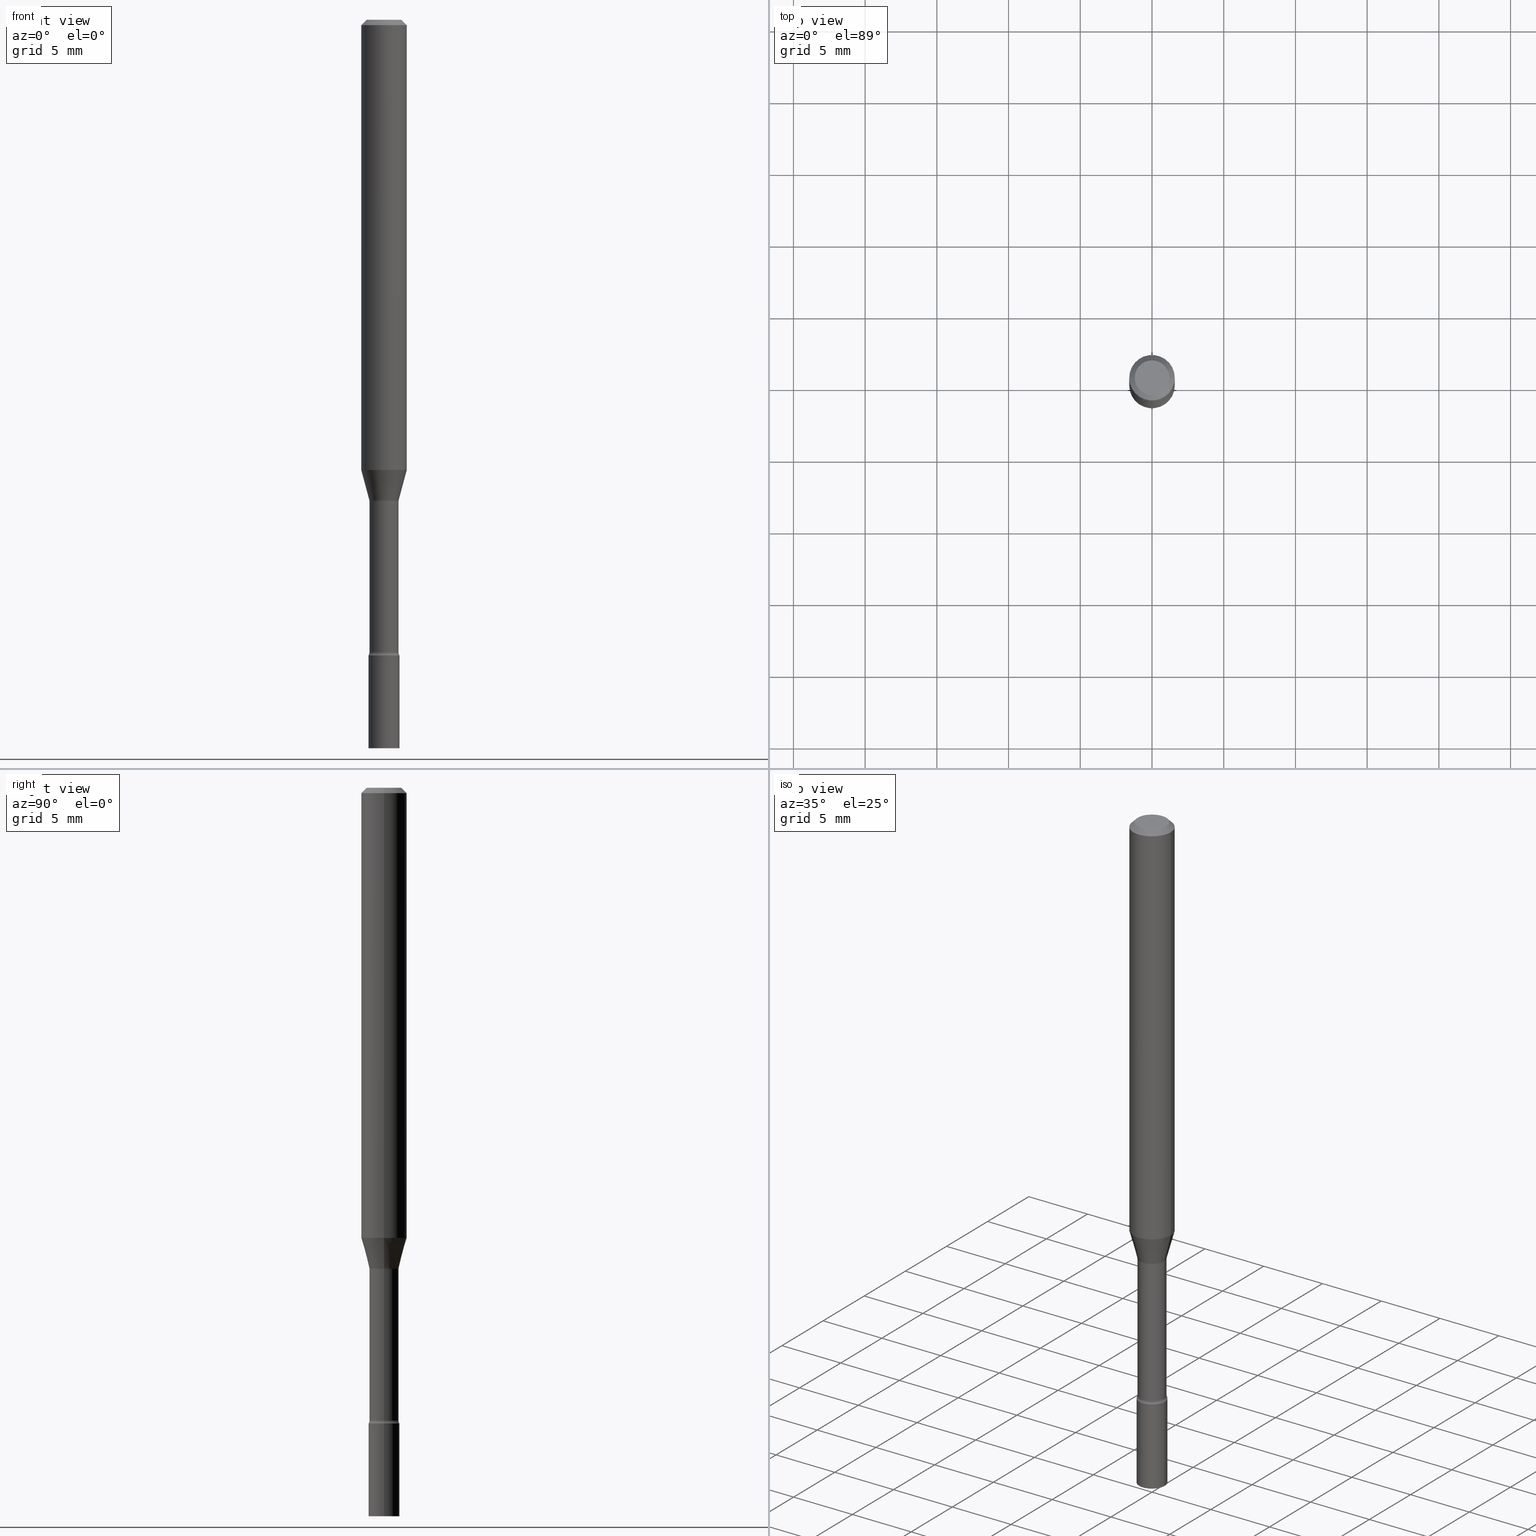
[diagram: canonical four-view strip — front | top / right | iso, engineering-drawing reading convention]
A machine part, canonical four-view strip (front | top / right | iso — engineering-drawing reading convention). The complete STEP part file that produces these views, byte-faithful:
ISO-10303-21;
HEADER;
FILE_DESCRIPTION (( 'STEP AP203' ),
    '1' );
FILE_NAME ('09877.STEP',
    '2024-03-09T02:40:56',
    ( '' ),
    ( '' ),
    'SwSTEP 2.0',
    'SolidWorks 2023',
    '' );
FILE_SCHEMA (( 'CONFIG_CONTROL_DESIGN' ));
ENDSEC;

DATA;
#1 = DIRECTION ( 'NONE',  ( 1.000000000000000000, -6.982962677686270655E-15, 0.000000000000000000 ) ) ;
#2 = ADVANCED_FACE ( 'NONE', ( #31 ), #85, .F. ) ;
#3 = CIRCLE ( 'NONE', #505, 0.04249999999999999611 ) ;
#4 = EDGE_CURVE ( 'NONE', #317, #429, #372, .T. ) ;
#5 = CARTESIAN_POINT ( 'NONE',  ( 0.000000000000000000, 0.000000000000000000, 0.000000000000000000 ) ) ;
#6 = LINE ( 'NONE', #447, #54 ) ;
#7 = CARTESIAN_POINT ( 'NONE',  ( -0.06250000000000000000, 3.840629472727443437E-16, -0.01500000000000003067 ) ) ;
#8 = PERSON_AND_ORGANIZATION ( #493, #487 ) ;
#9 = CC_DESIGN_DATE_AND_TIME_ASSIGNMENT ( #51, #297, ( #292 ) ) ;
#10 = DIRECTION ( 'NONE',  ( 1.000000000000000000, -6.982962677686267499E-15, 4.876176775795935793E-29 ) ) ;
#11 = AXIS2_PLACEMENT_3D ( 'NONE', #311, #421, #307 ) ;
#12 = APPROVAL_PERSON_ORGANIZATION ( #517, #144, #483 ) ;
#13 = LINE ( 'NONE', #7, #200 ) ;
#14 = LINE ( 'NONE', #27, #356 ) ;
#15 = ORIENTED_EDGE ( 'NONE', *, *, #231, .F. ) ;
#16 = LINE ( 'NONE', #276, #138 ) ;
#17 = ORIENTED_EDGE ( 'NONE', *, *, #96, .T. ) ;
#18 = ADVANCED_FACE ( 'NONE', ( #211 ), #288, .T. ) ;
#19 = AXIS2_PLACEMENT_3D ( 'NONE', #46, #262, #99 ) ;
#20 = ADVANCED_FACE ( 'NONE', ( #404 ), #41, .T. ) ;
#21 = AXIS2_PLACEMENT_3D ( 'NONE', #233, #235, #105 ) ;
#22 = LOCAL_TIME ( 21, 40, 56.00000000000000000, #215 ) ;
#23 = CARTESIAN_POINT ( 'NONE',  ( 3.223354096787303073E-29, -4.602095372859339575E-15, -1.318092501787273330 ) ) ;
#24 = VERTEX_POINT ( 'NONE', #42 ) ;
#25 = CARTESIAN_POINT ( 'NONE',  ( -0.06250000000000000000, -3.870830958754951536E-15, -1.235842254289322151 ) ) ;
#26 = ORIENTED_EDGE ( 'NONE', *, *, #96, .F. ) ;
#27 = CARTESIAN_POINT ( 'NONE',  ( 0.04046111260566397777, -4.884633812082352936E-15, -1.318092501787273330 ) ) ;
#28 = CC_DESIGN_DATE_AND_TIME_ASSIGNMENT ( #255, #258, ( #351 ) ) ;
#29 = APPROVAL_PERSON_ORGANIZATION ( #334, #187, #519 ) ;
#30 = FACE_OUTER_BOUND ( 'NONE', #466, .T. ) ;
#31 = FACE_OUTER_BOUND ( 'NONE', #224, .T. ) ;
#32 = CARTESIAN_POINT ( 'NONE',  ( 4.267343066793063832E-29, -6.092634936281288846E-15, -1.745000000000000107 ) ) ;
#33 = VERTEX_POINT ( 'NONE', #72 ) ;
#34 = CARTESIAN_POINT ( 'NONE',  ( 3.316907271900976096E-16, 0.04749999999999999362, -1.803023190589839165E-16 ) ) ;
#35 = ORIENTED_EDGE ( 'NONE', *, *, #361, .T. ) ;
#36 = ADVANCED_FACE ( 'NONE', ( #238 ), #39, .F. ) ;
#37 = EDGE_CURVE ( 'NONE', #355, #64, #127, .T. ) ;
#38 = PLANE ( 'NONE',  #86 ) ;
#39 = TOROIDAL_SURFACE ( 'NONE', #345, 0.05495000000000005436, 0.01499999999999999598 ) ;
#40 = LOCAL_TIME ( 21, 40, 56.00000000000000000, #380 ) ;
#41 = CYLINDRICAL_SURFACE ( 'NONE', #495, 0.06250000000000000000 ) ;
#42 = CARTESIAN_POINT ( 'NONE',  ( 0.06250000000000000000, -4.888073874380389458E-16, -0.01500000000000003067 ) ) ;
#43 = CALENDAR_DATE ( 2024, 8, 3 ) ;
#44 = DIRECTION ( 'NONE',  ( -2.445468806185136597E-29, 3.491481338843145583E-15, 1.000000000000000000 ) ) ;
#45 = DATE_AND_TIME ( #249, #40 ) ;
#46 = CARTESIAN_POINT ( 'NONE',  ( 3.223354096787303073E-29, -4.602095372859339575E-15, -1.318092501787273330 ) ) ;
#47 = AXIS2_PLACEMENT_3D ( 'NONE', #349, #150, #188 ) ;
#48 = DIRECTION ( 'NONE',  ( -2.445468806185136877E-29, 3.491481338843145188E-15, 1.000000000000000000 ) ) ;
#49 = DATE_AND_TIME ( #480, #22 ) ;
#50 = DIRECTION ( 'NONE',  ( -1.000000000000000000, 7.105427357600993970E-15, 0.000000000000000000 ) ) ;
#51 = DATE_AND_TIME ( #137, #357 ) ;
#52 = DIRECTION ( 'NONE',  ( -2.445468806185136597E-29, 3.491481338843145583E-15, 1.000000000000000000 ) ) ;
#53 = AXIS2_PLACEMENT_3D ( 'NONE', #218, #337, #250 ) ;
#54 = VECTOR ( 'NONE', #186, 39.37007874015747433 ) ;
#55 = AXIS2_PLACEMENT_3D ( 'NONE', #23, #428, #194 ) ;
#56 = FACE_OUTER_BOUND ( 'NONE', #79, .T. ) ;
#57 = ORIENTED_EDGE ( 'NONE', *, *, #60, .T. ) ;
#58 = PRODUCT ( '09877', '09877', '', ( #330 ) ) ;
#59 = CYLINDRICAL_SURFACE ( 'NONE', #193, 0.04249999999999999611 ) ;
#60 = EDGE_CURVE ( 'NONE', #33, #363, #183, .T. ) ;
#61 = ORIENTED_EDGE ( 'NONE', *, *, #446, .T. ) ;
#62 = UNCERTAINTY_MEASURE_WITH_UNIT (LENGTH_MEASURE( 1.000000000000000082E-05 ), #358, 'distance_accuracy_value', 'NONE');
#63 = LINE ( 'NONE', #457, #291 ) ;
#64 = VERTEX_POINT ( 'NONE', #412 ) ;
#65 = AXIS2_PLACEMENT_3D ( 'NONE', #295, #492, #70 ) ;
#66 = CIRCLE ( 'NONE', #322, 0.01500000000000002720 ) ;
#67 = DIRECTION ( 'NONE',  ( -6.982962677686266711E-15, -1.000000000000000000, 3.491481338843145583E-15 ) ) ;
#68 = VERTEX_POINT ( 'NONE', #296 ) ;
#69 = CC_DESIGN_PERSON_AND_ORGANIZATION_ASSIGNMENT ( #130, #367, ( #120 ) ) ;
#70 = DIRECTION ( 'NONE',  ( 1.000000000000000000, -6.982962677686265922E-15, 4.876176775795935793E-29 ) ) ;
#71 = ORIENTED_EDGE ( 'NONE', *, *, #368, .T. ) ;
#72 = CARTESIAN_POINT ( 'NONE',  ( -0.03995000000000005491, -5.785108039938417774E-15, -1.736633549139569688 ) ) ;
#73 = AXIS2_PLACEMENT_3D ( 'NONE', #453, #67, #107 ) ;
#74 = ADVANCED_BREP_SHAPE_REPRESENTATION ( '09877', ( #304, #135, #283 ), #306 ) ;
#75 = CARTESIAN_POINT ( 'NONE',  ( 4.267343066793063832E-29, -6.092634936281288846E-15, -1.745000000000000107 ) ) ;
#76 = ORIENTED_EDGE ( 'NONE', *, *, #498, .F. ) ;
#77 = FACE_OUTER_BOUND ( 'NONE', #393, .T. ) ;
#78 = EDGE_CURVE ( 'NONE', #64, #24, #222, .T. ) ;
#79 = EDGE_LOOP ( 'NONE', ( #474, #35, #71, #277 ) ) ;
#80 = EDGE_CURVE ( 'NONE', #456, #363, #221, .T. ) ;
#81 = EDGE_CURVE ( 'NONE', #518, #494, #504, .T. ) ;
#82 = DIRECTION ( 'NONE',  ( -2.438088387897960049E-29, 3.491481338843145188E-15, 1.000000000000000000 ) ) ;
#83 = DIRECTION ( 'NONE',  ( 1.000000000000000000, -6.982962677686268288E-15, 4.883557194083112901E-29 ) ) ;
#84 = DIRECTION ( 'NONE',  ( -2.445468806185136597E-29, 3.491481338843145583E-15, 1.000000000000000000 ) ) ;
#85 = TOROIDAL_SURFACE ( 'NONE', #382, 0.05495000000000005436, 0.01499999999999999598 ) ;
#86 = AXIS2_PLACEMENT_3D ( 'NONE', #34, #205, #320 ) ;
#87 = CARTESIAN_POINT ( 'NONE',  ( 3.232848105305976376E-29, -4.615650300851030950E-15, -1.321974787463811252 ) ) ;
#88 = CYLINDRICAL_SURFACE ( 'NONE', #227, 0.03995000000000002716 ) ;
#89 = COORDINATED_UNIVERSAL_TIME_OFFSET ( 5, 0, .BEHIND. ) ;
#90 = DIRECTION ( 'NONE',  ( 1.000000000000000000, -6.982962677686268288E-15, 4.883557194083112901E-29 ) ) ;
#91 = PERSON_AND_ORGANIZATION ( #493, #487 ) ;
#92 = LINE ( 'NONE', #257, #448 ) ;
#93 = LOCAL_TIME ( 21, 40, 56.00000000000000000, #94 ) ;
#94 = COORDINATED_UNIVERSAL_TIME_OFFSET ( 5, 0, .BEHIND. ) ;
#95 = CARTESIAN_POINT ( 'NONE',  ( 0.04249999999999999611, -7.279738591487957027E-15, -2.000000000000000000 ) ) ;
#96 = EDGE_CURVE ( 'NONE', #501, #314, #13, .T. ) ;
#97 = EDGE_CURVE ( 'NONE', #369, #199, #163, .T. ) ;
#98 = APPLICATION_PROTOCOL_DEFINITION ( 'international standard', 'config_control_design', 1994, #406 ) ;
#99 = DIRECTION ( 'NONE',  ( 1.000000000000000000, -6.982962677686276966E-15, 0.000000000000000000 ) ) ;
#100 = FACE_OUTER_BOUND ( 'NONE', #437, .T. ) ;
#101 = AXIS2_PLACEMENT_3D ( 'NONE', #418, #52, #375 ) ;
#102 = AXIS2_PLACEMENT_3D ( 'NONE', #399, #237, #161 ) ;
#103 = EDGE_CURVE ( 'NONE', #518, #355, #6, .T. ) ;
#104 = EDGE_CURVE ( 'NONE', #199, #321, #92, .T. ) ;
#105 = DIRECTION ( 'NONE',  ( 1.000000000000000000, -6.982962677686266711E-15, 0.000000000000000000 ) ) ;
#106 = EDGE_LOOP ( 'NONE', ( #310, #273, #458, #242 ) ) ;
#107 = DIRECTION ( 'NONE',  ( 1.000000000000000000, -6.982962677686255667E-15, 0.000000000000000000 ) ) ;
#108 = ORIENTED_EDGE ( 'NONE', *, *, #104, .F. ) ;
#109 = DIRECTION ( 'NONE',  ( -2.445468806185136597E-29, 3.491481338843145583E-15, 1.000000000000000000 ) ) ;
#110 = ORIENTED_EDGE ( 'NONE', *, *, #514, .F. ) ;
#111 = CC_DESIGN_PERSON_AND_ORGANIZATION_ASSIGNMENT ( #91, #374, ( #292 ) ) ;
#112 = LOCAL_TIME ( 21, 40, 56.00000000000000000, #89 ) ;
#113 = DIRECTION ( 'NONE',  ( -2.445468806185136597E-29, 3.491481338843145583E-15, 1.000000000000000000 ) ) ;
#114 = ORIENTED_EDGE ( 'NONE', *, *, #344, .F. ) ;
#115 = DIRECTION ( 'NONE',  ( 1.000000000000000000, -6.982962677686266711E-15, 0.000000000000000000 ) ) ;
#116 = ORIENTED_EDGE ( 'NONE', *, *, #289, .F. ) ;
#117 = CARTESIAN_POINT ( 'NONE',  ( 4.246883172195400307E-29, -6.063423629229748682E-15, -1.736633549139569688 ) ) ;
#118 = EDGE_LOOP ( 'NONE', ( #398, #126, #151, #159 ) ) ;
#119 = AXIS2_PLACEMENT_3D ( 'NONE', #444, #341, #178 ) ;
#120 = PRODUCT_DEFINITION_FORMATION_WITH_SPECIFIED_SOURCE ( 'ANY', '', #58, .NOT_KNOWN. ) ;
#121 = DIRECTION ( 'NONE',  ( 1.000000000000000000, -6.982962677686276177E-15, 0.000000000000000000 ) ) ;
#122 = ORIENTED_EDGE ( 'NONE', *, *, #136, .T. ) ;
#123 = CARTESIAN_POINT ( 'NONE',  ( 0.04249999999999998918, -6.389410850082956286E-15, -1.745000000000000107 ) ) ;
#124 = DIRECTION ( 'NONE',  ( 1.000000000000000000, -6.982962677686276966E-15, 0.000000000000000000 ) ) ;
#125 = CARTESIAN_POINT ( 'NONE',  ( -0.04046111260566397777, -4.092716417593515738E-15, -1.318092501787273330 ) ) ;
#126 = ORIENTED_EDGE ( 'NONE', *, *, #179, .T. ) ;
#127 = CIRCLE ( 'NONE', #425, 0.06250000000000000000 ) ;
#128 = AXIS2_PLACEMENT_3D ( 'NONE', #359, #470, #115 ) ;
#129 = DIRECTION ( 'NONE',  ( -1.000000000000000000, 6.982962677686265922E-15, -4.876176775795935793E-29 ) ) ;
#130 = PERSON_AND_ORGANIZATION ( #493, #487 ) ;
#131 = DIRECTION ( 'NONE',  ( -0.7071067811865475727, 2.468850131082257455E-15, -0.7071067811865474617 ) ) ;
#132 = CALENDAR_DATE ( 2024, 8, 3 ) ;
#133 = DIMENSIONAL_EXPONENTS ( 1.000000000000000000, 0.000000000000000000, 0.000000000000000000, 0.000000000000000000, 0.000000000000000000, 0.000000000000000000, 0.000000000000000000 ) ;
#134 = DIRECTION ( 'NONE',  ( 1.000000000000000000, -6.982962677686270655E-15, 0.000000000000000000 ) ) ;
#135 = MANIFOLD_SOLID_BREP ( 'Body-Move/Copy2[2]', #471 ) ;
#136 = EDGE_CURVE ( 'NONE', #352, #321, #207, .T. ) ;
#137 = CALENDAR_DATE ( 2024, 8, 3 ) ;
#138 = VECTOR ( 'NONE', #309, 39.37007874015748143 ) ;
#139 = CC_DESIGN_PERSON_AND_ORGANIZATION_ASSIGNMENT ( #417, #336, ( #351 ) ) ;
#140 = FACE_OUTER_BOUND ( 'NONE', #228, .T. ) ;
#141 = VECTOR ( 'NONE', #436, 39.37007874015748143 ) ;
#142 = CARTESIAN_POINT ( 'NONE',  ( -0.06250000000000000000, 4.440892098500626162E-16, -3.074334431409316114E-30 ) ) ;
#143 = DIRECTION ( 'NONE',  ( 1.000000000000000000, -6.982962677686269866E-15, 4.883557194083114022E-29 ) ) ;
#144 = APPROVAL ( #182, 'UNSPECIFIED' ) ;
#145 = CARTESIAN_POINT ( 'NONE',  ( 3.232848105305976376E-29, -4.615650300851030950E-15, -1.321974787463811252 ) ) ;
#146 = VECTOR ( 'NONE', #48, 39.37007874015748143 ) ;
#147 = VECTOR ( 'NONE', #271, 39.37007874015748143 ) ;
#148 = DIRECTION ( 'NONE',  ( -2.445468806185136597E-29, 3.491481338843145583E-15, 1.000000000000000000 ) ) ;
#149 = ORIENTED_EDGE ( 'NONE', *, *, #467, .T. ) ;
#150 = DIRECTION ( 'NONE',  ( -6.982962677686266711E-15, -1.000000000000000000, 3.491481338843145583E-15 ) ) ;
#151 = ORIENTED_EDGE ( 'NONE', *, *, #507, .F. ) ;
#152 = DIRECTION ( 'NONE',  ( 1.000000000000000000, -6.982962677686269866E-15, 4.883557194083114022E-29 ) ) ;
#153 = ORIENTED_EDGE ( 'NONE', *, *, #81, .T. ) ;
#154 = AXIS2_PLACEMENT_3D ( 'NONE', #387, #225, #198 ) ;
#155 = CC_DESIGN_APPROVAL ( #144, ( #292 ) ) ;
#156 = LENGTH_MEASURE_WITH_UNIT ( LENGTH_MEASURE( 0.02539999999999999897 ), #212 );
#157 = EDGE_LOOP ( 'NONE', ( #61, #422 ) ) ;
#158 = DIRECTION ( 'NONE',  ( 1.000000000000000000, -6.982962677686276177E-15, 0.000000000000000000 ) ) ;
#159 = ORIENTED_EDGE ( 'NONE', *, *, #78, .F. ) ;
#160 = CC_DESIGN_PERSON_AND_ORGANIZATION_ASSIGNMENT ( #8, #376, ( #120 ) ) ;
#161 = DIRECTION ( 'NONE',  ( -1.000000000000000000, 6.982962677686266711E-15, 0.000000000000000000 ) ) ;
#162 = ORIENTED_EDGE ( 'NONE', *, *, #104, .T. ) ;
#163 = CIRCLE ( 'NONE', #101, 0.04249999999999999611 ) ;
#164 = CONICAL_SURFACE ( 'NONE', #175, 0.06250000000000000000, 0.7853981633974483900 ) ;
#165 = CC_DESIGN_SECURITY_CLASSIFICATION ( #292, ( #120 ) ) ;
#166 = DIRECTION ( 'NONE',  ( -1.000000000000000000, 6.982962677686266711E-15, 0.000000000000000000 ) ) ;
#167 = ORIENTED_EDGE ( 'NONE', *, *, #269, .F. ) ;
#168 = DIRECTION ( 'NONE',  ( 1.000000000000000000, -6.982962677686276966E-15, 0.000000000000000000 ) ) ;
#169 = ADVANCED_FACE ( 'NONE', ( #489 ), #381, .T. ) ;
#170 = ORIENTED_EDGE ( 'NONE', *, *, #78, .T. ) ;
#171 = SHAPE_DEFINITION_REPRESENTATION ( #490, #74 ) ;
#172 = DIRECTION ( 'NONE',  ( -2.445468806185136597E-29, 3.491481338843145583E-15, 1.000000000000000000 ) ) ;
#173 = AXIS2_PLACEMENT_3D ( 'NONE', #253, #452, #384 ) ;
#174 = PERSON_AND_ORGANIZATION ( #493, #487 ) ;
#175 = AXIS2_PLACEMENT_3D ( 'NONE', #465, #210, #166 ) ;
#176 = PLANE ( 'NONE',  #65 ) ;
#177 = COORDINATED_UNIVERSAL_TIME_OFFSET ( 5, 0, .BEHIND. ) ;
#178 = DIRECTION ( 'NONE',  ( 1.000000000000000000, -6.982962677686276177E-15, 0.000000000000000000 ) ) ;
#179 = EDGE_CURVE ( 'NONE', #355, #314, #220, .T. ) ;
#180 = ADVANCED_FACE ( 'NONE', ( #140 ), #342, .T. ) ;
#181 = DIRECTION ( 'NONE',  ( -2.445468806185136597E-29, 3.491481338843145583E-15, 1.000000000000000000 ) ) ;
#182 = APPROVAL_STATUS ( 'not_yet_approved' ) ;
#183 = CIRCLE ( 'NONE', #440, 0.01499999999999999424 ) ;
#184 = CARTESIAN_POINT ( 'NONE',  ( 0.000000000000000000, 0.000000000000000000, 0.000000000000000000 ) ) ;
#185 = CIRCLE ( 'NONE', #479, 0.03994999999999999246 ) ;
#186 = DIRECTION ( 'NONE',  ( -0.2588190451025214611, 5.211531920934551042E-15, 0.9659258262890682012 ) ) ;
#187 = APPROVAL ( #370, 'UNSPECIFIED' ) ;
#188 = DIRECTION ( 'NONE',  ( 1.000000000000000000, -6.982962677686270655E-15, 0.000000000000000000 ) ) ;
#189 = ORIENTED_EDGE ( 'NONE', *, *, #325, .F. ) ;
#190 = DIRECTION ( 'NONE',  ( -2.445468806185136597E-29, 3.491481338843145583E-15, 1.000000000000000000 ) ) ;
#191 = CIRCLE ( 'NONE', #512, 0.06250000000000000000 ) ;
#192 = EDGE_LOOP ( 'NONE', ( #424, #402, #170, #206 ) ) ;
#193 = AXIS2_PLACEMENT_3D ( 'NONE', #265, #148, #394 ) ;
#194 = DIRECTION ( 'NONE',  ( 1.000000000000000000, -6.982962677686276966E-15, 0.000000000000000000 ) ) ;
#195 = ORIENTED_EDGE ( 'NONE', *, *, #278, .T. ) ;
#196 = CARTESIAN_POINT ( 'NONE',  ( -0.05494999999999999885, -4.225207067550855512E-15, -1.321974787463811252 ) ) ;
#197 = EDGE_LOOP ( 'NONE', ( #202, #153, #285, #472 ) ) ;
#198 = DIRECTION ( 'NONE',  ( 1.000000000000000000, -6.982962677686265922E-15, 0.000000000000000000 ) ) ;
#199 = VERTEX_POINT ( 'NONE', #95 ) ;
#200 = VECTOR ( 'NONE', #131, 39.37007874015748143 ) ;
#201 = CARTESIAN_POINT ( 'NONE',  ( 0.04046111260566397777, -4.884633812082352936E-15, -1.318092501787273330 ) ) ;
#202 = ORIENTED_EDGE ( 'NONE', *, *, #103, .F. ) ;
#203 = DIRECTION ( 'NONE',  ( 1.000000000000000000, -6.982962677686265922E-15, 4.876176775795935232E-29 ) ) ;
#204 = ORIENTED_EDGE ( 'NONE', *, *, #252, .T. ) ;
#205 = DIRECTION ( 'NONE',  ( 2.438088387897960049E-29, -3.491481338843145188E-15, -1.000000000000000000 ) ) ;
#206 = ORIENTED_EDGE ( 'NONE', *, *, #267, .F. ) ;
#207 = CIRCLE ( 'NONE', #119, 0.04249999999999999611 ) ;
#208 = AXIS2_PLACEMENT_3D ( 'NONE', #407, #365, #475 ) ;
#209 = APPROVAL ( #214, 'UNSPECIFIED' ) ;
#210 = DIRECTION ( 'NONE',  ( 2.445468806185136597E-29, -3.491481338843145583E-15, -1.000000000000000000 ) ) ;
#211 = FACE_OUTER_BOUND ( 'NONE', #331, .T. ) ;
#212 =( LENGTH_UNIT ( ) NAMED_UNIT ( * ) SI_UNIT ( $, .METRE. ) );
#213 = ORIENTED_EDGE ( 'NONE', *, *, #294, .T. ) ;
#214 = APPROVAL_STATUS ( 'not_yet_approved' ) ;
#215 = COORDINATED_UNIVERSAL_TIME_OFFSET ( 5, 0, .BEHIND. ) ;
#216 = CC_DESIGN_APPROVAL ( #209, ( #351 ) ) ;
#217 = CARTESIAN_POINT ( 'NONE',  ( 0.06250000000000000000, -4.364351673553916694E-16, 3.047610484872459871E-30 ) ) ;
#218 = CARTESIAN_POINT ( 'NONE',  ( 0.000000000000000000, 0.000000000000000000, 0.000000000000000000 ) ) ;
#219 = DIRECTION ( 'NONE',  ( 0.000000000000000000, 0.000000000000000000, 1.000000000000000000 ) ) ;
#220 = LINE ( 'NONE', #142, #332 ) ;
#221 = CIRCLE ( 'NONE', #173, 0.04249999999999999611 ) ;
#222 = LINE ( 'NONE', #217, #146 ) ;
#223 = CIRCLE ( 'NONE', #239, 0.04249999999999999611 ) ;
#224 = EDGE_LOOP ( 'NONE', ( #236, #57, #149, #360 ) ) ;
#225 = DIRECTION ( 'NONE',  ( -2.445468806185136597E-29, 3.491481338843145583E-15, 1.000000000000000000 ) ) ;
#226 = EDGE_LOOP ( 'NONE', ( #195, #312, #497, #348 ) ) ;
#227 = AXIS2_PLACEMENT_3D ( 'NONE', #184, #44, #302 ) ;
#228 = EDGE_LOOP ( 'NONE', ( #329, #506, #319, #108 ) ) ;
#229 = ADVANCED_FACE ( 'NONE', ( #442 ), #88, .T. ) ;
#230 = AXIS2_PLACEMENT_3D ( 'NONE', #353, #423, #143 ) ;
#231 = EDGE_CURVE ( 'NONE', #64, #355, #191, .T. ) ;
#232 = ADVANCED_FACE ( 'NONE', ( #371 ), #176, .F. ) ;
#233 = CARTESIAN_POINT ( 'NONE',  ( 3.668203209277712094E-31, -5.237222008264728876E-17, -0.01500000000000003067 ) ) ;
#234 = ORIENTED_EDGE ( 'NONE', *, *, #80, .F. ) ;
#235 = DIRECTION ( 'NONE',  ( -2.445468806185136597E-29, 3.491481338843145583E-15, 1.000000000000000000 ) ) ;
#236 = ORIENTED_EDGE ( 'NONE', *, *, #413, .F. ) ;
#237 = DIRECTION ( 'NONE',  ( 2.445468806185136597E-29, -3.491481338843145583E-15, -1.000000000000000000 ) ) ;
#238 = FACE_OUTER_BOUND ( 'NONE', #106, .T. ) ;
#239 = AXIS2_PLACEMENT_3D ( 'NONE', #247, #509, #121 ) ;
#240 = CARTESIAN_POINT ( 'NONE',  ( -0.03995000000000002716, 2.838618229361602172E-16, -1.965114568556836001E-30 ) ) ;
#241 = PLANE ( 'NONE',  #454 ) ;
#242 = ORIENTED_EDGE ( 'NONE', *, *, #80, .T. ) ;
#243 = DIRECTION ( 'NONE',  ( -2.445468806185136597E-29, 3.491481338843145583E-15, 1.000000000000000000 ) ) ;
#244 = CARTESIAN_POINT ( 'NONE',  ( 2.967759138017151657E-16, 0.04249999999999301559, -2.000000000000000444 ) ) ;
#245 = ADVANCED_FACE ( 'NONE', ( #264 ), #272, .T. ) ;
#246 = TOROIDAL_SURFACE ( 'NONE', #230, 0.05494999999999999885, 0.01500000000000003240 ) ;
#247 = CARTESIAN_POINT ( 'NONE',  ( 4.267343066793063832E-29, -6.092634936281288846E-15, -1.745000000000000107 ) ) ;
#248 = ORIENTED_EDGE ( 'NONE', *, *, #136, .F. ) ;
#249 = CALENDAR_DATE ( 2024, 8, 3 ) ;
#250 = DIRECTION ( 'NONE',  ( 1.000000000000000000, -6.982962677686266711E-15, 4.876176775795935793E-29 ) ) ;
#251 = PERSON_AND_ORGANIZATION_ROLE ( 'design_owner' ) ;
#252 = EDGE_CURVE ( 'NONE', #68, #317, #16, .T. ) ;
#253 = CARTESIAN_POINT ( 'NONE',  ( 4.267343066793063832E-29, -6.092634936281288846E-15, -1.745000000000000107 ) ) ;
#254 = AXIS2_PLACEMENT_3D ( 'NONE', #244, #478, #129 ) ;
#255 = DATE_AND_TIME ( #43, #112 ) ;
#256 = TOROIDAL_SURFACE ( 'NONE', #388, 0.05494999999999999885, 0.01500000000000003240 ) ;
#257 = CARTESIAN_POINT ( 'NONE',  ( 0.04249999999999999611, -2.967759138016663549E-16, 2.072375129713272502E-30 ) ) ;
#258 = DATE_TIME_ROLE ( 'creation_date' ) ;
#259 = CARTESIAN_POINT ( 'NONE',  ( 3.022213682230056525E-29, -4.314920168605014152E-15, -1.235842254289322151 ) ) ;
#260 = ADVANCED_FACE ( 'NONE', ( #420 ), #59, .T. ) ;
#261 = PERSON_AND_ORGANIZATION ( #493, #487 ) ;
#262 = DIRECTION ( 'NONE',  ( -2.445468806185136597E-29, 3.491481338843145583E-15, 1.000000000000000000 ) ) ;
#263 = AXIS2_PLACEMENT_3D ( 'NONE', #87, #172, #124 ) ;
#264 = FACE_OUTER_BOUND ( 'NONE', #197, .T. ) ;
#265 = CARTESIAN_POINT ( 'NONE',  ( 0.000000000000000000, 0.000000000000000000, 0.000000000000000000 ) ) ;
#266 = ORIENTED_EDGE ( 'NONE', *, *, #499, .T. ) ;
#267 = EDGE_CURVE ( 'NONE', #314, #24, #346, .T. ) ;
#268 = CARTESIAN_POINT ( 'NONE',  ( 3.223354096787303073E-29, -4.602095372859339575E-15, -1.318092501787273330 ) ) ;
#269 = EDGE_CURVE ( 'NONE', #494, #64, #14, .T. ) ;
#270 = ORIENTED_EDGE ( 'NONE', *, *, #97, .F. ) ;
#271 = DIRECTION ( 'NONE',  ( 0.7071067811865475727, -7.319954787623256045E-15, -0.7071067811865474617 ) ) ;
#272 = CONICAL_SURFACE ( 'NONE', #338, 0.04046111260566397777, 0.2617993877991501295 ) ;
#273 = ORIENTED_EDGE ( 'NONE', *, *, #278, .F. ) ;
#274 = APPROVAL_PERSON_ORGANIZATION ( #261, #209, #301 ) ;
#275 = DESIGN_CONTEXT ( 'detailed design', #406, 'design' ) ;
#276 = CARTESIAN_POINT ( 'NONE',  ( 0.03995000000000002716, -2.789693589735665255E-16, 1.948032621930477518E-30 ) ) ;
#277 = ORIENTED_EDGE ( 'NONE', *, *, #294, .F. ) ;
#278 = EDGE_CURVE ( 'NONE', #68, #33, #364, .T. ) ;
#279 = DIRECTION ( 'NONE',  ( -2.445468806185136597E-29, 3.491481338843145583E-15, 1.000000000000000000 ) ) ;
#280 = ORIENTED_EDGE ( 'NONE', *, *, #507, .T. ) ;
#281 = CARTESIAN_POINT ( 'NONE',  ( -0.03994999999999999246, -5.055675142104229106E-15, -1.321974787463811252 ) ) ;
#282 = ORIENTED_EDGE ( 'NONE', *, *, #446, .F. ) ;
#283 = AXIS2_PLACEMENT_3D ( 'NONE', #5, #219, #445 ) ;
#284 = CARTESIAN_POINT ( 'NONE',  ( -0.04249999999999999611, -6.235818144285747159E-15, -2.000000000000000000 ) ) ;
#285 = ORIENTED_EDGE ( 'NONE', *, *, #269, .T. ) ;
#286 = LINE ( 'NONE', #240, #141 ) ;
#287 = ADVANCED_FACE ( 'NONE', ( #56 ), #246, .F. ) ;
#288 = PLANE ( 'NONE',  #254 ) ;
#289 = EDGE_CURVE ( 'NONE', #369, #352, #63, .T. ) ;
#290 = CARTESIAN_POINT ( 'NONE',  ( 4.246883172195400307E-29, -6.063423629229748682E-15, -1.736633549139569688 ) ) ;
#291 = VECTOR ( 'NONE', #347, 39.37007874015748143 ) ;
#292 = SECURITY_CLASSIFICATION ( '', '', #485 ) ;
#293 = DIRECTION ( 'NONE',  ( -2.445468806185136597E-29, 3.491481338843145583E-15, 1.000000000000000000 ) ) ;
#294 = EDGE_CURVE ( 'NONE', #494, #317, #405, .T. ) ;
#295 = CARTESIAN_POINT ( 'NONE',  ( 2.967759138017089534E-16, 0.04249999999999390377, -1.745000000000000329 ) ) ;
#296 = CARTESIAN_POINT ( 'NONE',  ( 0.03995000000000005491, -6.342392988203315207E-15, -1.736633549139569688 ) ) ;
#297 = DATE_TIME_ROLE ( 'classification_date' ) ;
#298 = CIRCLE ( 'NONE', #354, 0.04249999999999999611 ) ;
#299 = CARTESIAN_POINT ( 'NONE',  ( 4.246883172195400307E-29, -6.063423629229748682E-15, -1.736633549139569688 ) ) ;
#300 = ADVANCED_FACE ( 'NONE', ( #455 ), #411, .T. ) ;
#301 = APPROVAL_ROLE ( '' ) ;
#302 = DIRECTION ( 'NONE',  ( 1.000000000000000000, -6.982962677686265922E-15, 4.876176775795935232E-29 ) ) ;
#303 = CARTESIAN_POINT ( 'NONE',  ( 0.04249999999999999611, -6.389410850082955497E-15, -1.745000000000000107 ) ) ;
#304 = MANIFOLD_SOLID_BREP ( 'Body-Move/Copy2[1]', #520 ) ;
#305 = AXIS2_PLACEMENT_3D ( 'NONE', #481, #293, #10 ) ;
#306 =( GEOMETRIC_REPRESENTATION_CONTEXT ( 3 ) GLOBAL_UNCERTAINTY_ASSIGNED_CONTEXT ( ( #62 ) ) GLOBAL_UNIT_ASSIGNED_CONTEXT ( ( #358, #443, #415 ) ) REPRESENTATION_CONTEXT ( 'NONE', 'WORKASPACE' ) );
#307 = DIRECTION ( 'NONE',  ( 1.000000000000000000, -6.982962677686276966E-15, 0.000000000000000000 ) ) ;
#308 = ORIENTED_EDGE ( 'NONE', *, *, #515, .F. ) ;
#309 = DIRECTION ( 'NONE',  ( -2.445468806185136877E-29, 3.491481338843145188E-15, 1.000000000000000000 ) ) ;
#310 = ORIENTED_EDGE ( 'NONE', *, *, #60, .F. ) ;
#311 = CARTESIAN_POINT ( 'NONE',  ( 3.223354096787303073E-29, -4.602095372859339575E-15, -1.318092501787273330 ) ) ;
#312 = ORIENTED_EDGE ( 'NONE', *, *, #514, .T. ) ;
#313 = CARTESIAN_POINT ( 'NONE',  ( -0.04249999999999998918, -5.790654273583246394E-15, -1.745000000000000107 ) ) ;
#314 = VERTEX_POINT ( 'NONE', #385 ) ;
#315 = CONICAL_SURFACE ( 'NONE', #102, 0.06250000000000000000, 0.7853981633974483900 ) ;
#316 = DIRECTION ( 'NONE',  ( 1.000000000000000000, -6.982962677686276177E-15, 0.000000000000000000 ) ) ;
#317 = VERTEX_POINT ( 'NONE', #500 ) ;
#318 = CARTESIAN_POINT ( 'NONE',  ( 7.070806723891919892E-46, -1.009523804376275404E-31, -2.891391092786900929E-17 ) ) ;
#319 = ORIENTED_EDGE ( 'NONE', *, *, #499, .F. ) ;
#320 = DIRECTION ( 'NONE',  ( -1.000000000000000000, 6.982962677686265922E-15, -4.876176775795935793E-29 ) ) ;
#321 = VERTEX_POINT ( 'NONE', #303 ) ;
#322 = AXIS2_PLACEMENT_3D ( 'NONE', #196, #502, #350 ) ;
#323 = EDGE_CURVE ( 'NONE', #68, #456, #373, .T. ) ;
#324 = CARTESIAN_POINT ( 'NONE',  ( 4.890937612370273194E-29, -6.982962677686291165E-15, -2.000000000000000000 ) ) ;
#325 = EDGE_CURVE ( 'NONE', #494, #518, #397, .T. ) ;
#326 = EDGE_LOOP ( 'NONE', ( #116, #386, #162, #248 ) ) ;
#327 = DIRECTION ( 'NONE',  ( -2.445468806185136597E-29, 3.491481338843145583E-15, 1.000000000000000000 ) ) ;
#328 = APPLICATION_CONTEXT ( 'configuration controlled 3d designs of mechanical parts and assemblies' ) ;
#329 = ORIENTED_EDGE ( 'NONE', *, *, #498, .T. ) ;
#330 = MECHANICAL_CONTEXT ( 'NONE', #328, 'mechanical' ) ;
#331 = EDGE_LOOP ( 'NONE', ( #76, #270 ) ) ;
#332 = VECTOR ( 'NONE', #486, 39.37007874015748143 ) ;
#333 = PRODUCT_RELATED_PRODUCT_CATEGORY ( 'detail', '', ( #58 ) ) ;
#334 = PERSON_AND_ORGANIZATION ( #493, #487 ) ;
#335 = APPROVAL_DATE_TIME ( #45, #209 ) ;
#336 = PERSON_AND_ORGANIZATION_ROLE ( 'creator' ) ;
#337 = DIRECTION ( 'NONE',  ( -2.445468806185136597E-29, 3.491481338843145583E-15, 1.000000000000000000 ) ) ;
#338 = AXIS2_PLACEMENT_3D ( 'NONE', #268, #190, #496 ) ;
#339 = CIRCLE ( 'NONE', #128, 0.06250000000000000000 ) ;
#340 = ADVANCED_FACE ( 'NONE', ( #100 ), #256, .F. ) ;
#341 = DIRECTION ( 'NONE',  ( -2.445468806185136597E-29, 3.491481338843145583E-15, 1.000000000000000000 ) ) ;
#342 = CYLINDRICAL_SURFACE ( 'NONE', #305, 0.04249999999999999611 ) ;
#343 = ORIENTED_EDGE ( 'NONE', *, *, #413, .T. ) ;
#344 = EDGE_CURVE ( 'NONE', #469, #24, #459, .T. ) ;
#345 = AXIS2_PLACEMENT_3D ( 'NONE', #299, #181, #90 ) ;
#346 = CIRCLE ( 'NONE', #21, 0.06250000000000000000 ) ;
#347 = DIRECTION ( 'NONE',  ( -2.445468806185136877E-29, 3.491481338843145188E-15, 1.000000000000000000 ) ) ;
#348 = ORIENTED_EDGE ( 'NONE', *, *, #252, .F. ) ;
#349 = CARTESIAN_POINT ( 'NONE',  ( 0.05495000000000005436, -6.447137428368609366E-15, -1.736633549139569688 ) ) ;
#350 = DIRECTION ( 'NONE',  ( -1.000000000000000000, 7.105427357601009747E-15, 0.000000000000000000 ) ) ;
#351 = PRODUCT_DEFINITION ( 'UNKNOWN', '', #120, #275 ) ;
#352 = VERTEX_POINT ( 'NONE', #427 ) ;
#353 = CARTESIAN_POINT ( 'NONE',  ( 3.232848105305976376E-29, -4.615650300851030950E-15, -1.321974787463811252 ) ) ;
#354 = AXIS2_PLACEMENT_3D ( 'NONE', #75, #279, #316 ) ;
#355 = VERTEX_POINT ( 'NONE', #25 ) ;
#356 = VECTOR ( 'NONE', #389, 39.37007874015747433 ) ;
#357 = LOCAL_TIME ( 21, 40, 56.00000000000000000, #177 ) ;
#358 =( CONVERSION_BASED_UNIT ( 'INCH', #156 ) LENGTH_UNIT ( ) NAMED_UNIT ( #133 ) );
#359 = CARTESIAN_POINT ( 'NONE',  ( 3.668203209277712094E-31, -5.237222008264728876E-17, -0.01500000000000003067 ) ) ;
#360 = ORIENTED_EDGE ( 'NONE', *, *, #323, .F. ) ;
#361 = EDGE_CURVE ( 'NONE', #518, #429, #66, .T. ) ;
#362 = CYLINDRICAL_SURFACE ( 'NONE', #441, 0.03995000000000002716 ) ;
#363 = VERTEX_POINT ( 'NONE', #313 ) ;
#364 = CIRCLE ( 'NONE', #154, 0.03995000000000005491 ) ;
#365 = DIRECTION ( 'NONE',  ( -2.445468806185136597E-29, 3.491481338843145583E-15, 1.000000000000000000 ) ) ;
#366 = DIRECTION ( 'NONE',  ( -2.445468806185136597E-29, 3.491481338843145583E-15, 1.000000000000000000 ) ) ;
#367 = PERSON_AND_ORGANIZATION_ROLE ( 'design_supplier' ) ;
#368 = EDGE_CURVE ( 'NONE', #429, #317, #185, .T. ) ;
#369 = VERTEX_POINT ( 'NONE', #284 ) ;
#370 = APPROVAL_STATUS ( 'not_yet_approved' ) ;
#371 = FACE_OUTER_BOUND ( 'NONE', #433, .T. ) ;
#372 = CIRCLE ( 'NONE', #263, 0.03994999999999999246 ) ;
#373 = CIRCLE ( 'NONE', #47, 0.01499999999999999424 ) ;
#374 = PERSON_AND_ORGANIZATION_ROLE ( 'classification_officer' ) ;
#375 = DIRECTION ( 'NONE',  ( 1.000000000000000000, -6.982962677686276177E-15, 0.000000000000000000 ) ) ;
#376 = PERSON_AND_ORGANIZATION_ROLE ( 'creator' ) ;
#377 = CARTESIAN_POINT ( 'NONE',  ( -0.05495000000000005436, -5.672980395929573243E-15, -1.736633549139569688 ) ) ;
#378 = ADVANCED_FACE ( 'NONE', ( #30 ), #315, .T. ) ;
#379 = ADVANCED_FACE ( 'NONE', ( #434 ), #164, .T. ) ;
#380 = COORDINATED_UNIVERSAL_TIME_OFFSET ( 5, 0, .BEHIND. ) ;
#381 = CYLINDRICAL_SURFACE ( 'NONE', #53, 0.06250000000000000000 ) ;
#382 = AXIS2_PLACEMENT_3D ( 'NONE', #290, #439, #83 ) ;
#383 = AXIS2_PLACEMENT_3D ( 'NONE', #318, #84, #396 ) ;
#384 = DIRECTION ( 'NONE',  ( 1.000000000000000000, -6.982962677686276177E-15, 0.000000000000000000 ) ) ;
#385 = CARTESIAN_POINT ( 'NONE',  ( -0.06250000000000000000, -1.739556984493767999E-15, -0.01500000000000003067 ) ) ;
#386 = ORIENTED_EDGE ( 'NONE', *, *, #97, .T. ) ;
#387 = CARTESIAN_POINT ( 'NONE',  ( 4.246883172195400307E-29, -6.063423629229748682E-15, -1.736633549139569688 ) ) ;
#388 = AXIS2_PLACEMENT_3D ( 'NONE', #145, #109, #152 ) ;
#389 = DIRECTION ( 'NONE',  ( 0.2588190451025214611, 1.565188264969621573E-15, 0.9659258262890682012 ) ) ;
#390 = EDGE_LOOP ( 'NONE', ( #516, #395, #15, #167 ) ) ;
#391 = ADVANCED_FACE ( 'NONE', ( #77 ), #241, .T. ) ;
#392 = CARTESIAN_POINT ( 'NONE',  ( 0.06250000000000000000, -4.811533449433680977E-16, -0.01500000000000003067 ) ) ;
#393 = EDGE_LOOP ( 'NONE', ( #266, #122 ) ) ;
#394 = DIRECTION ( 'NONE',  ( 1.000000000000000000, -6.982962677686267499E-15, 4.876176775795935793E-29 ) ) ;
#395 = ORIENTED_EDGE ( 'NONE', *, *, #103, .T. ) ;
#396 = DIRECTION ( 'NONE',  ( 1.000000000000000000, -6.982962677686267499E-15, 4.876681293081646444E-29 ) ) ;
#397 = CIRCLE ( 'NONE', #11, 0.04046111260566397777 ) ;
#398 = ORIENTED_EDGE ( 'NONE', *, *, #231, .T. ) ;
#399 = CARTESIAN_POINT ( 'NONE',  ( 3.668203209277712094E-31, -5.237222008264728876E-17, -0.01500000000000003067 ) ) ;
#400 = EDGE_LOOP ( 'NONE', ( #308, #508, #280, #26 ) ) ;
#401 = DIRECTION ( 'NONE',  ( 1.000000000000000000, -6.982962677686265922E-15, 0.000000000000000000 ) ) ;
#402 = ORIENTED_EDGE ( 'NONE', *, *, #37, .T. ) ;
#403 = FACE_OUTER_BOUND ( 'NONE', #226, .T. ) ;
#404 = FACE_OUTER_BOUND ( 'NONE', #192, .T. ) ;
#405 = CIRCLE ( 'NONE', #73, 0.01500000000000002720 ) ;
#406 = APPLICATION_CONTEXT ( 'configuration controlled 3d designs of mechanical parts and assemblies' ) ;
#407 = CARTESIAN_POINT ( 'NONE',  ( 7.070806723891919892E-46, -1.009523804376275404E-31, -2.891391092786900929E-17 ) ) ;
#408 = DIRECTION ( 'NONE',  ( 1.000000000000000000, -6.982962677686266711E-15, 4.876176775795935793E-29 ) ) ;
#409 = APPLICATION_PROTOCOL_DEFINITION ( 'international standard', 'config_control_design', 1994, #328 ) ;
#410 = DIRECTION ( 'NONE',  ( 7.105427357601001859E-15, 1.000000000000000000, -3.491481338843145583E-15 ) ) ;
#411 = CONICAL_SURFACE ( 'NONE', #55, 0.04046111260566397777, 0.2617993877991501295 ) ;
#412 = CARTESIAN_POINT ( 'NONE',  ( 0.06250000000000000000, -4.751355335960405821E-15, -1.235842254289322151 ) ) ;
#413 = EDGE_CURVE ( 'NONE', #33, #68, #462, .T. ) ;
#414 = ADVANCED_FACE ( 'NONE', ( #430 ), #38, .F. ) ;
#415 =( NAMED_UNIT ( * ) SI_UNIT ( $, .STERADIAN. ) SOLID_ANGLE_UNIT ( ) );
#416 = DIRECTION ( 'NONE',  ( -2.445468806185136597E-29, 3.491481338843145583E-15, 1.000000000000000000 ) ) ;
#417 = PERSON_AND_ORGANIZATION ( #493, #487 ) ;
#418 = CARTESIAN_POINT ( 'NONE',  ( 4.890937612370273194E-29, -6.982962677686291165E-15, -2.000000000000000000 ) ) ;
#419 = CC_DESIGN_APPROVAL ( #187, ( #120 ) ) ;
#420 = FACE_OUTER_BOUND ( 'NONE', #326, .T. ) ;
#421 = DIRECTION ( 'NONE',  ( -2.445468806185136597E-29, 3.491481338843145583E-15, 1.000000000000000000 ) ) ;
#422 = ORIENTED_EDGE ( 'NONE', *, *, #515, .T. ) ;
#423 = DIRECTION ( 'NONE',  ( -2.445468806185136597E-29, 3.491481338843145583E-15, 1.000000000000000000 ) ) ;
#424 = ORIENTED_EDGE ( 'NONE', *, *, #179, .F. ) ;
#425 = AXIS2_PLACEMENT_3D ( 'NONE', #484, #491, #134 ) ;
#426 = CIRCLE ( 'NONE', #208, 0.04749999999999999362 ) ;
#427 = CARTESIAN_POINT ( 'NONE',  ( -0.04249999999999999611, -6.235818144285747159E-15, -1.745000000000000107 ) ) ;
#428 = DIRECTION ( 'NONE',  ( -2.445468806185136597E-29, 3.491481338843145583E-15, 1.000000000000000000 ) ) ;
#429 = VERTEX_POINT ( 'NONE', #281 ) ;
#430 = FACE_OUTER_BOUND ( 'NONE', #157, .T. ) ;
#431 = CARTESIAN_POINT ( 'NONE',  ( 0.000000000000000000, 0.000000000000000000, 0.000000000000000000 ) ) ;
#432 = DIRECTION ( 'NONE',  ( -2.445468806185136597E-29, 3.491481338843145583E-15, 1.000000000000000000 ) ) ;
#433 = EDGE_LOOP ( 'NONE', ( #234, #461 ) ) ;
#434 = FACE_OUTER_BOUND ( 'NONE', #400, .T. ) ;
#435 = EDGE_LOOP ( 'NONE', ( #110, #343, #204, #503 ) ) ;
#436 = DIRECTION ( 'NONE',  ( -2.445468806185136877E-29, 3.491481338843145188E-15, 1.000000000000000000 ) ) ;
#437 = EDGE_LOOP ( 'NONE', ( #464, #189, #213, #476 ) ) ;
#438 = DIRECTION ( 'NONE',  ( 1.000000000000000000, -6.982962677686265922E-15, 4.876176775795935793E-29 ) ) ;
#439 = DIRECTION ( 'NONE',  ( -2.445468806185136597E-29, 3.491481338843145583E-15, 1.000000000000000000 ) ) ;
#440 = AXIS2_PLACEMENT_3D ( 'NONE', #377, #410, #50 ) ;
#441 = AXIS2_PLACEMENT_3D ( 'NONE', #511, #327, #203 ) ;
#442 = FACE_OUTER_BOUND ( 'NONE', #435, .T. ) ;
#443 =( NAMED_UNIT ( * ) PLANE_ANGLE_UNIT ( ) SI_UNIT ( $, .RADIAN. ) );
#444 = CARTESIAN_POINT ( 'NONE',  ( 4.267343066793063832E-29, -6.092634936281288846E-15, -1.745000000000000107 ) ) ;
#445 = DIRECTION ( 'NONE',  ( 1.000000000000000000, 0.000000000000000000, 0.000000000000000000 ) ) ;
#446 = EDGE_CURVE ( 'NONE', #501, #469, #513, .T. ) ;
#447 = CARTESIAN_POINT ( 'NONE',  ( -0.04046111260566397777, -4.314601876432080730E-15, -1.318092501787273330 ) ) ;
#448 = VECTOR ( 'NONE', #451, 39.37007874015748143 ) ;
#449 = AXIS2_PLACEMENT_3D ( 'NONE', #117, #243, #401 ) ;
#450 = DATE_AND_TIME ( #132, #93 ) ;
#451 = DIRECTION ( 'NONE',  ( -2.445468806185136877E-29, 3.491481338843145188E-15, 1.000000000000000000 ) ) ;
#452 = DIRECTION ( 'NONE',  ( -2.445468806185136597E-29, 3.491481338843145583E-15, 1.000000000000000000 ) ) ;
#453 = CARTESIAN_POINT ( 'NONE',  ( 0.05494999999999999885, -4.999364099989891634E-15, -1.321974787463811252 ) ) ;
#454 = AXIS2_PLACEMENT_3D ( 'NONE', #32, #82, #438 ) ;
#455 = FACE_OUTER_BOUND ( 'NONE', #390, .T. ) ;
#456 = VERTEX_POINT ( 'NONE', #123 ) ;
#457 = CARTESIAN_POINT ( 'NONE',  ( -0.04249999999999999611, 3.019806626980425514E-16, -2.090547413358334859E-30 ) ) ;
#458 = ORIENTED_EDGE ( 'NONE', *, *, #323, .T. ) ;
#459 = LINE ( 'NONE', #392, #147 ) ;
#460 = ADVANCED_FACE ( 'NONE', ( #403 ), #362, .T. ) ;
#461 = ORIENTED_EDGE ( 'NONE', *, *, #467, .F. ) ;
#462 = CIRCLE ( 'NONE', #449, 0.03995000000000005491 ) ;
#463 = CARTESIAN_POINT ( 'NONE',  ( 3.232848105305976376E-29, -4.615650300851030950E-15, -1.321974787463811252 ) ) ;
#464 = ORIENTED_EDGE ( 'NONE', *, *, #361, .F. ) ;
#465 = CARTESIAN_POINT ( 'NONE',  ( 3.668203209277712094E-31, -5.237222008264728876E-17, -0.01500000000000003067 ) ) ;
#466 = EDGE_LOOP ( 'NONE', ( #114, #282, #17, #510 ) ) ;
#467 = EDGE_CURVE ( 'NONE', #363, #456, #223, .T. ) ;
#468 = CARTESIAN_POINT ( 'NONE',  ( 0.04749999999999999362, -4.035134999187579609E-16, -2.891391092786643933E-17 ) ) ;
#469 = VERTEX_POINT ( 'NONE', #468 ) ;
#470 = DIRECTION ( 'NONE',  ( -2.445468806185136597E-29, 3.491481338843145583E-15, 1.000000000000000000 ) ) ;
#471 = CLOSED_SHELL ( 'NONE', ( #287, #460, #2, #379, #169, #300, #245, #20, #378, #414, #232, #36, #229, #340 ) ) ;
#472 = ORIENTED_EDGE ( 'NONE', *, *, #37, .F. ) ;
#473 = CARTESIAN_POINT ( 'NONE',  ( -0.04749999999999999362, 3.578768372314209027E-16, -2.891391092787141902E-17 ) ) ;
#474 = ORIENTED_EDGE ( 'NONE', *, *, #81, .F. ) ;
#475 = DIRECTION ( 'NONE',  ( 1.000000000000000000, -6.982962677686267499E-15, 4.876681293081646444E-29 ) ) ;
#476 = ORIENTED_EDGE ( 'NONE', *, *, #4, .T. ) ;
#477 = APPROVAL_DATE_TIME ( #49, #187 ) ;
#478 = DIRECTION ( 'NONE',  ( 2.438088387897960049E-29, -3.491481338843145188E-15, -1.000000000000000000 ) ) ;
#479 = AXIS2_PLACEMENT_3D ( 'NONE', #463, #113, #168 ) ;
#480 = CALENDAR_DATE ( 2024, 8, 3 ) ;
#481 = CARTESIAN_POINT ( 'NONE',  ( 0.000000000000000000, 0.000000000000000000, 0.000000000000000000 ) ) ;
#482 = CC_DESIGN_PERSON_AND_ORGANIZATION_ASSIGNMENT ( #174, #251, ( #58 ) ) ;
#483 = APPROVAL_ROLE ( '' ) ;
#484 = CARTESIAN_POINT ( 'NONE',  ( 3.022213682230056525E-29, -4.314920168605014152E-15, -1.235842254289322151 ) ) ;
#485 = SECURITY_CLASSIFICATION_LEVEL ( 'unclassified' ) ;
#486 = DIRECTION ( 'NONE',  ( -2.445468806185136877E-29, 3.491481338843145188E-15, 1.000000000000000000 ) ) ;
#487 = ORGANIZATION ( 'UNSPECIFIED', 'UNSPECIFIED', '' ) ;
#488 = APPROVAL_DATE_TIME ( #450, #144 ) ;
#489 = FACE_OUTER_BOUND ( 'NONE', #118, .T. ) ;
#490 = PRODUCT_DEFINITION_SHAPE ( 'NONE', 'NONE',  #351 ) ;
#491 = DIRECTION ( 'NONE',  ( -2.445468806185136597E-29, 3.491481338843145583E-15, 1.000000000000000000 ) ) ;
#492 = DIRECTION ( 'NONE',  ( -2.438088387897960049E-29, 3.491481338843145188E-15, 1.000000000000000000 ) ) ;
#493 = PERSON ( 'UNSPECIFIED', 'UNSPECIFIED', 'UNSPECIFIED', ('UNSPECIFIED'), ('UNSPECIFIED'), ('UNSPECIFIED') ) ;
#494 = VERTEX_POINT ( 'NONE', #201 ) ;
#495 = AXIS2_PLACEMENT_3D ( 'NONE', #431, #366, #408 ) ;
#496 = DIRECTION ( 'NONE',  ( 1.000000000000000000, -6.982962677686276966E-15, 0.000000000000000000 ) ) ;
#497 = ORIENTED_EDGE ( 'NONE', *, *, #4, .F. ) ;
#498 = EDGE_CURVE ( 'NONE', #199, #369, #3, .T. ) ;
#499 = EDGE_CURVE ( 'NONE', #321, #352, #298, .T. ) ;
#500 = CARTESIAN_POINT ( 'NONE',  ( 0.03994999999999999246, -4.894619659824597475E-15, -1.321974787463811252 ) ) ;
#501 = VERTEX_POINT ( 'NONE', #473 ) ;
#502 = DIRECTION ( 'NONE',  ( 7.105427357601001859E-15, 1.000000000000000000, -3.491481338843145583E-15 ) ) ;
#503 = ORIENTED_EDGE ( 'NONE', *, *, #368, .F. ) ;
#504 = CIRCLE ( 'NONE', #19, 0.04046111260566397777 ) ;
#505 = AXIS2_PLACEMENT_3D ( 'NONE', #324, #432, #158 ) ;
#506 = ORIENTED_EDGE ( 'NONE', *, *, #289, .T. ) ;
#507 = EDGE_CURVE ( 'NONE', #24, #314, #339, .T. ) ;
#508 = ORIENTED_EDGE ( 'NONE', *, *, #344, .T. ) ;
#509 = DIRECTION ( 'NONE',  ( -2.445468806185136597E-29, 3.491481338843145583E-15, 1.000000000000000000 ) ) ;
#510 = ORIENTED_EDGE ( 'NONE', *, *, #267, .T. ) ;
#511 = CARTESIAN_POINT ( 'NONE',  ( 0.000000000000000000, 0.000000000000000000, 0.000000000000000000 ) ) ;
#512 = AXIS2_PLACEMENT_3D ( 'NONE', #259, #416, #1 ) ;
#513 = CIRCLE ( 'NONE', #383, 0.04749999999999999362 ) ;
#514 = EDGE_CURVE ( 'NONE', #33, #429, #286, .T. ) ;
#515 = EDGE_CURVE ( 'NONE', #469, #501, #426, .T. ) ;
#516 = ORIENTED_EDGE ( 'NONE', *, *, #325, .T. ) ;
#517 = PERSON_AND_ORGANIZATION ( #493, #487 ) ;
#518 = VERTEX_POINT ( 'NONE', #125 ) ;
#519 = APPROVAL_ROLE ( '' ) ;
#520 = CLOSED_SHELL ( 'NONE', ( #180, #391, #260, #18 ) ) ;
ENDSEC;
END-ISO-10303-21;
